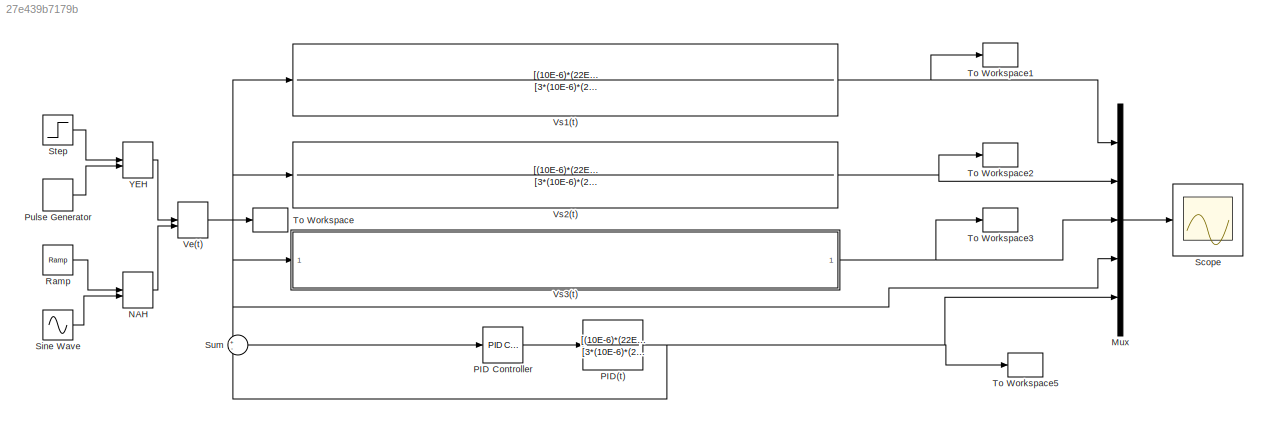
MODEL slx_27e439b7179b
KIND model
CONFIG AbsTol = auto
CONFIG EnableMultiTasking = off
CONFIG FixedStep = auto
CONFIG MaxStep = auto
CONFIG MinStep = auto
CONFIG RelTol = 1e-3
CONFIG SampleTimeConstraint = Unconstrained
CONFIG SolverName = VariableStepAuto
CONFIG StartTime = 0.0
CONFIG StopTime = 10.0
BLOCK [Mux] Mux
  DisplayOption = bar
  Inputs = 5
BLOCK [ManualSwitch] NAH
  CurrentSetting = 0
BLOCK [Reference] PID Controller  REF=slpidlib/PID Controller
  LibrarySourceBlock = simulink/Continuous/PID Controller
  SourceBlock = slpidlib/PID Controller
  SourceType = PID 1dof
BLOCK [TransferFcn] PID(t)
  Denominator = [3*(10E-6)*(22E3)*(220E-6),5*(10E-6)*(22E3)^2+220E-6,2*(22E3)]
  Numerator = [(10E-6)*(22E3)*(220E-6),(10E-6)*(22E3)^2+220E-6,22E3]
BLOCK [DiscretePulseGenerator] Pulse Generator
  Period = 10
  PhaseDelay = 1
  PulseType = Time based
  PulseWidth = 10
BLOCK [Reference] Ramp  REF=simulink/Sources/Ramp
  SourceBlock = simulink/Sources/Ramp
  SourceType = Ramp
BLOCK [Scope] Scope
  ActiveDisplayYMaximum = 1.1272521447203556
  ActiveDisplayYMinimum = -0.1252502383022617
  ContainerLayout = {"WindowBounds":[799,1411,790,717]}
  Floating = off
  GraphicalSettings = {"Style":{"BackgroundColor":[1,1,1],"AxesColor":[1,1,1],"LabelsColor":[0,0,0],"PreserveColors":false,"Visible":[true,true,false,true,true,true,true],"LineStyle":["-","-","-","-","-","-","-"],"LineWidth":[1.5,1.5,1.5,1.5,1.5,1.5,1.5],"BarWidth":[0.9,0.9,0.9,0.9,0.9,0.9,0.9],"LineColor":[[0.9294117647058824,0.6941176470588235,0.12549019607843137],[0.06666666666666667,0.44313725490196076,0.7450980392...<+2732ch>
  MultipleDisplayCache = [{"MaxYLimMag":1.1272521447203556,"MaxYLimReal":1.1272521447203556,"MinYLimMag":0,"MinYLimReal":-0.1252502383022617,"PlotAsMagnitudePhase":false,"ShowGrid":true,"ShowLegend":true,"Title":"%<SignalLabel>","YLabel":""}]
  NumInputPorts = 1
  ShowLegend = on
  Visible = on
  WasSavedAsWebScope = on
  WindowPosition = [799.000000,4.000000,800.000000,732.000000,]
BLOCK [Sin] Sine Wave
  Frequency = 1.5078
  SampleTime = 0.001
BLOCK [Step] Step
  SampleTime = 0.001
  Time = 0
BLOCK [Sum] Sum
  Inputs = +-
BLOCK [ToWorkspace] To Workspace
  FixptAsFi = on
  MaxDataPoints = inf
  SampleTime = -1
  VariableName = Ve
BLOCK [ToWorkspace] To Workspace1
  FixptAsFi = on
  MaxDataPoints = inf
  SampleTime = -1
  VariableName = VS1
BLOCK [ToWorkspace] To Workspace2
  FixptAsFi = on
  MaxDataPoints = inf
  SampleTime = -1
  VariableName = VS2
BLOCK [ToWorkspace] To Workspace3
  FixptAsFi = on
  MaxDataPoints = inf
  SampleTime = -1
  VariableName = VS3
BLOCK [ToWorkspace] To Workspace5
  FixptAsFi = on
  MaxDataPoints = inf
  SampleTime = -1
  VariableName = PID
BLOCK [ManualSwitch] Ve(t)
  CurrentSetting = 0
BLOCK [TransferFcn] Vs1(t)
  Denominator = [3*(10E-6)*(22E3)*(220E-6),5*(10E-6)*(22E3)^2+220E-6,2*(22E3)]
  Numerator = [(10E-6)*(22E3)*(220E-6),(10E-6)*(22E3)^2+220E-6,22E3]
BLOCK [TransferFcn] Vs2(t)
  Denominator = [3*(10E-6)*(22E3)*(220E-6),5*(10E-6)*(22E3)^2+220E-6,2*(22E3)]
  Numerator = [(10E-6)*(22E3)*(220E-6),(10E-6)*(22E3)^2+220E-6,22E3]
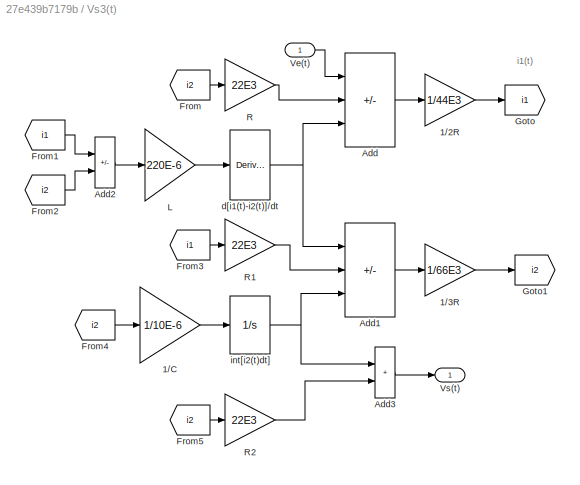
BLOCK [SubSystem] Vs3(t)
BLOCK [Gain] Vs3(t)/1//2R
  Gain = 1/44E3
BLOCK [Gain] Vs3(t)/1//3R
  Gain = 1/66E3
BLOCK [Gain] Vs3(t)/1//C
  Gain = 1/10E-6
BLOCK [Sum] Vs3(t)/Add
  IconShape = rectangular
  Inputs = ++-
BLOCK [Sum] Vs3(t)/Add1
  IconShape = rectangular
  Inputs = ++-
BLOCK [Sum] Vs3(t)/Add2
  IconShape = rectangular
  Inputs = +-
BLOCK [Sum] Vs3(t)/Add3
  IconShape = rectangular
BLOCK [From] Vs3(t)/From
  GotoTag = i2
BLOCK [From] Vs3(t)/From1
  GotoTag = i1
BLOCK [From] Vs3(t)/From2
  GotoTag = i2
BLOCK [From] Vs3(t)/From3
  GotoTag = i1
BLOCK [From] Vs3(t)/From4
  GotoTag = i2
BLOCK [From] Vs3(t)/From5
  GotoTag = i2
BLOCK [Goto] Vs3(t)/Goto
  GotoTag = i1
BLOCK [Goto] Vs3(t)/Goto1
  GotoTag = i2
BLOCK [Gain] Vs3(t)/L
  Gain = 220E-6
BLOCK [Gain] Vs3(t)/R
  Gain = 22E3
BLOCK [Gain] Vs3(t)/R1
  Gain = 22E3
BLOCK [Gain] Vs3(t)/R2
  Gain = 22E3
BLOCK [Inport] Vs3(t)/Ve(t)
BLOCK [Outport] Vs3(t)/Vs(t)
BLOCK [Derivative] Vs3(t)/d[i1(t)-i2(t)]//dt
BLOCK [Integrator] Vs3(t)/int[i2(t)dt]
BLOCK [ManualSwitch] YEH
  CurrentSetting = 0
ANNOTATION Vs3(t): i1(t)
LINE Mux:1 -> Scope:1
LINE NAH:1 -> Ve(t):2
LINE PID Controller:1 -> PID(t):1
NET PID(t):1 -> Mux:5, Sum:2, To Workspace5:1
LINE Pulse Generator:1 -> YEH:2
LINE Ramp:1 -> NAH:1
LINE Sine Wave:1 -> NAH:2
LINE Step:1 -> YEH:1
LINE Sum:1 -> PID Controller:1
NET Ve(t):1 -> Mux:4, Sum:1, To Workspace:1, Vs1(t):1, Vs2(t):1, Vs3(t):1
NET Vs1(t):1 -> Mux:1, To Workspace1:1
NET Vs2(t):1 -> Mux:2, To Workspace2:1
LINE Vs3(t)/1//2R:1 -> Vs3(t)/Goto:1
LINE Vs3(t)/1//3R:1 -> Vs3(t)/Goto1:1
LINE Vs3(t)/1//C:1 -> Vs3(t)/int[i2(t)dt]:1
LINE Vs3(t)/Add1:1 -> Vs3(t)/1//3R:1
LINE Vs3(t)/Add2:1 -> Vs3(t)/L:1
LINE Vs3(t)/Add3:1 -> Vs3(t)/Vs(t):1
LINE Vs3(t)/Add:1 -> Vs3(t)/1//2R:1
LINE Vs3(t)/From1:1 -> Vs3(t)/Add2:1
LINE Vs3(t)/From2:1 -> Vs3(t)/Add2:2
LINE Vs3(t)/From3:1 -> Vs3(t)/R1:1
LINE Vs3(t)/From4:1 -> Vs3(t)/1//C:1
LINE Vs3(t)/From5:1 -> Vs3(t)/R2:1
LINE Vs3(t)/From:1 -> Vs3(t)/R:1
LINE Vs3(t)/L:1 -> Vs3(t)/d[i1(t)-i2(t)]//dt:1
LINE Vs3(t)/R1:1 -> Vs3(t)/Add1:2
LINE Vs3(t)/R2:1 -> Vs3(t)/Add3:2
LINE Vs3(t)/R:1 -> Vs3(t)/Add:2
LINE Vs3(t)/Ve(t):1 -> Vs3(t)/Add:1
NET Vs3(t)/d[i1(t)-i2(t)]//dt:1 -> Vs3(t)/Add1:1, Vs3(t)/Add:3
NET Vs3(t)/int[i2(t)dt]:1 -> Vs3(t)/Add1:3, Vs3(t)/Add3:1
NET Vs3(t):1 -> Mux:3, To Workspace3:1
LINE YEH:1 -> Ve(t):1
note: NET lines group one-source signal fan-out (src -> all destinations, sorted); 1:1 wires keep LINE
